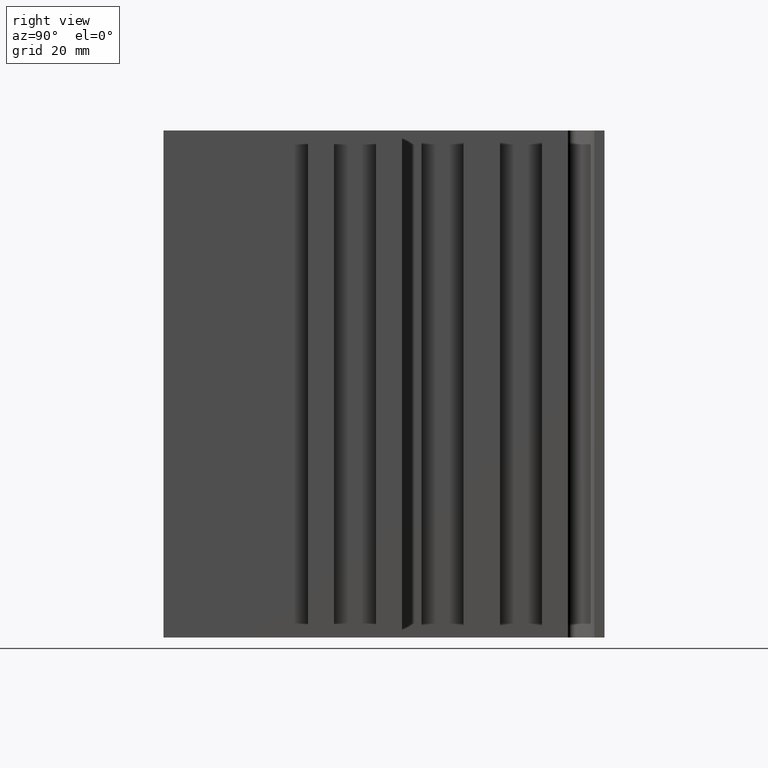
[diagram: clean part render]
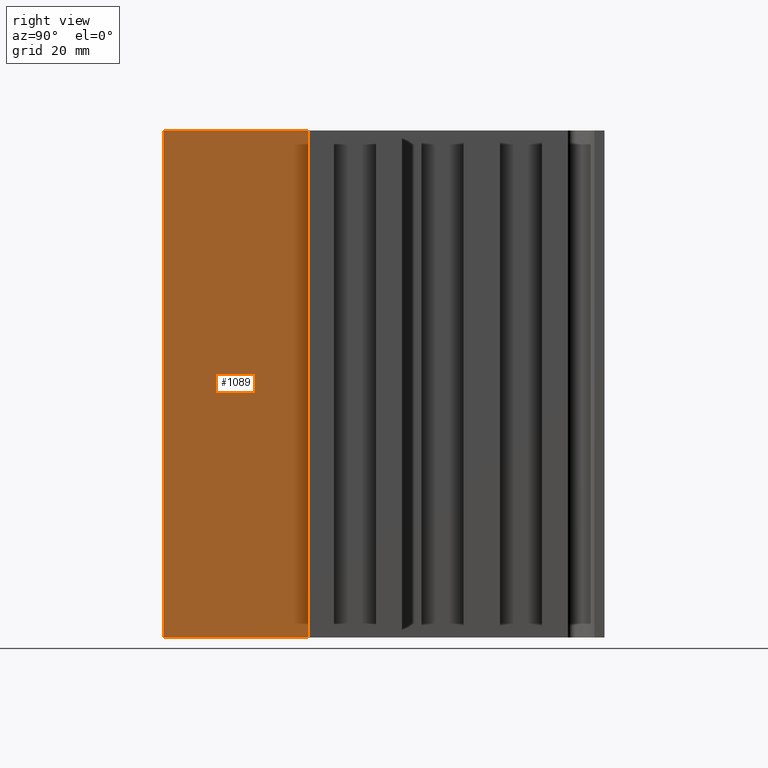
[diagram: same view with one face highlighted and labeled with its STEP entity id]
A machine part, right view. The second image highlights one B-rep face of the part: STEP entity #1089.
In plain terms, the highlighted planar face has unit normal (1, 0, 0).
Its self-contained STEP definition (entity closure, byte-faithful):
#73=FACE_OUTER_BOUND('',#128,.T.);
#128=EDGE_LOOP('',(#810,#811,#812,#813));
#231=LINE('',#1655,#370);
#232=LINE('',#1658,#371);
#233=LINE('',#1660,#372);
#234=LINE('',#1661,#373);
#370=VECTOR('',#1343,100.);
#371=VECTOR('',#1346,28.5);
#372=VECTOR('',#1347,28.5);
#373=VECTOR('',#1348,100.);
#489=VERTEX_POINT('',#1651);
#490=VERTEX_POINT('',#1653);
#491=VERTEX_POINT('',#1657);
#492=VERTEX_POINT('',#1659);
#623=EDGE_CURVE('',#489,#490,#231,.T.);
#624=EDGE_CURVE('',#491,#489,#232,.T.);
#625=EDGE_CURVE('',#492,#490,#233,.T.);
#626=EDGE_CURVE('',#491,#492,#234,.T.);
#810=ORIENTED_EDGE('',*,*,#624,.T.);
#811=ORIENTED_EDGE('',*,*,#623,.T.);
#812=ORIENTED_EDGE('',*,*,#625,.F.);
#813=ORIENTED_EDGE('',*,*,#626,.F.);
#1040=PLANE('',#1154);
#1089=ADVANCED_FACE('',(#73),#1040,.T.);
#1154=AXIS2_PLACEMENT_3D('',#1656,#1344,#1345);
#1343=DIRECTION('',(0.,0.,1.));
#1344=DIRECTION('center_axis',(1.,0.,0.));
#1345=DIRECTION('ref_axis',(0.,1.,0.));
#1346=DIRECTION('',(0.,1.,0.));
#1347=DIRECTION('',(0.,1.,0.));
#1348=DIRECTION('',(0.,0.,1.));
#1651=CARTESIAN_POINT('',(22.5,-16.5,0.));
#1653=CARTESIAN_POINT('',(22.5,-16.5,100.));
#1655=CARTESIAN_POINT('',(22.5,-16.5,0.));
#1656=CARTESIAN_POINT('Origin',(22.5,-45.,0.));
#1657=CARTESIAN_POINT('',(22.5,-45.,0.));
#1658=CARTESIAN_POINT('',(22.5,-45.,0.));
#1659=CARTESIAN_POINT('',(22.5,-45.,100.));
#1660=CARTESIAN_POINT('',(22.5,-45.,100.));
#1661=CARTESIAN_POINT('',(22.5,-45.,0.));